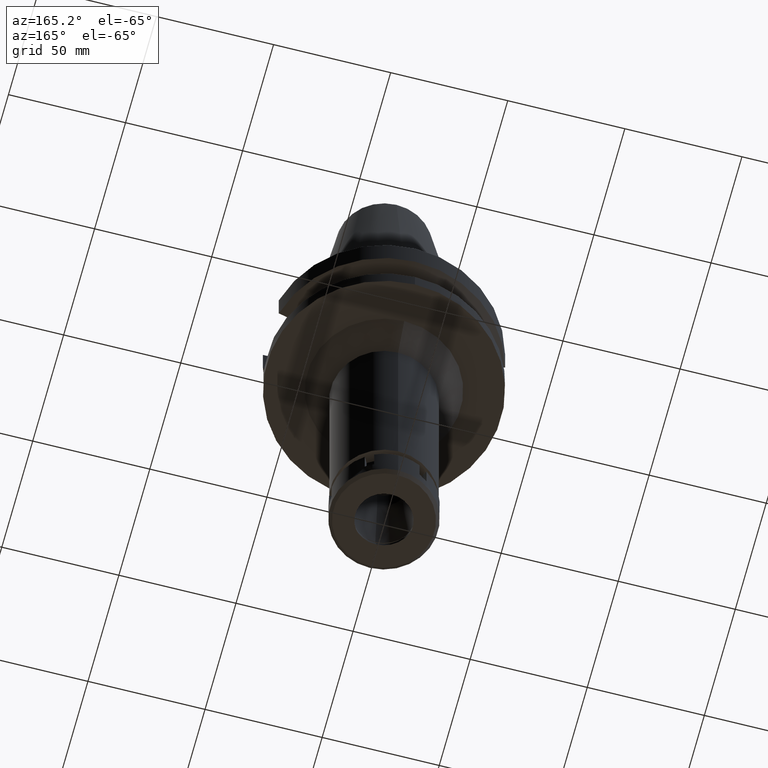
[diagram: clean part render]
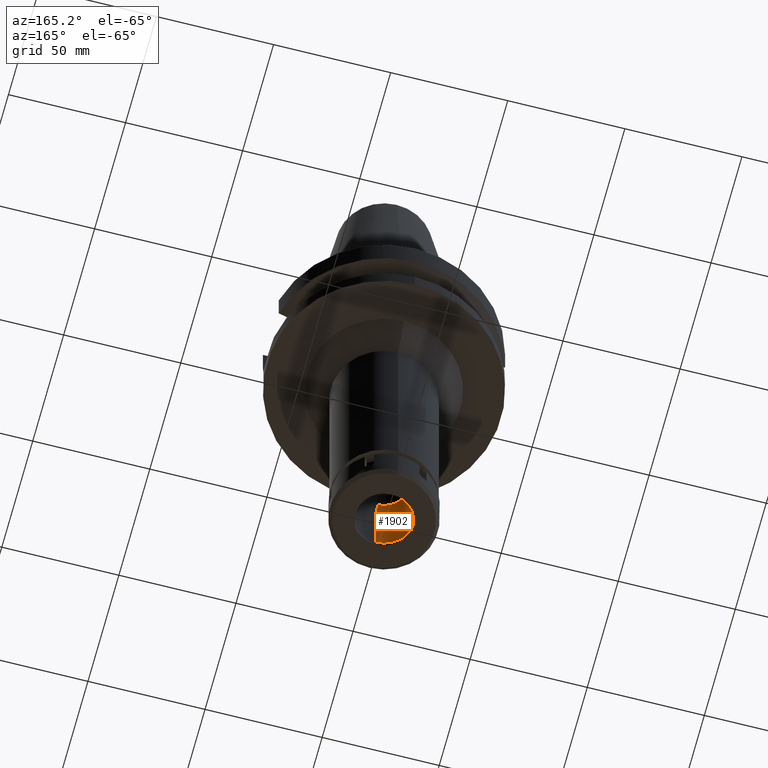
[diagram: same view with one face highlighted and labeled with its STEP entity id]
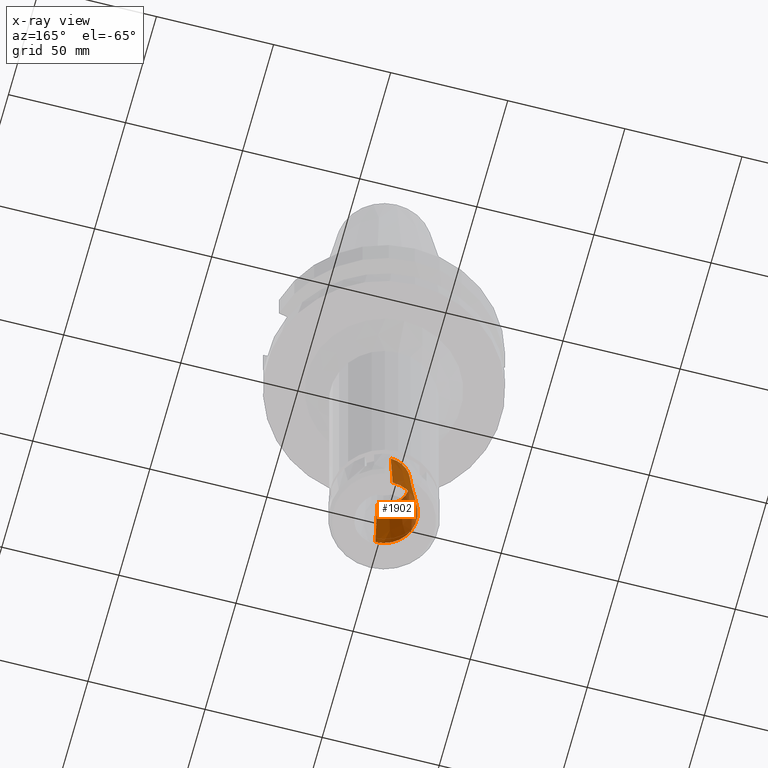
[diagram: x-ray of the same camera — body ghosted, the highlighted face saturated]
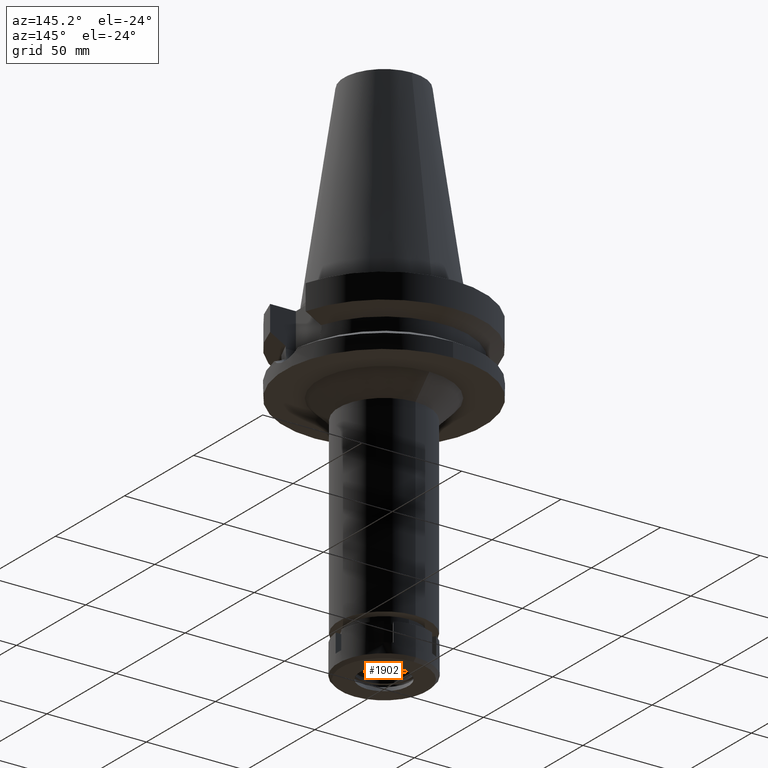
[diagram: same view with one face highlighted and labeled with its STEP entity id]
A machine part, auxiliary view. The second image highlights one B-rep face of the part: STEP entity #1902.
The next image is the same camera in x-ray: the body ghosted, the highlighted face saturated — about 2% of this face is hidden behind the body in this view.
A second angle (auxiliary view) of the same face is appended — the face is thin or edge-on in the first view.
In plain terms, the highlighted conical surface has half-angle 6 deg.
Its self-contained STEP definition (entity closure, byte-faithful):
#52 = DIRECTION ( 'NONE',  ( 0.0000000000000000000, 0.0000000000000000000, 1.000000000000000000 ) ) ;
#55 = CARTESIAN_POINT ( 'NONE',  ( 0.0000000000000000000, -10.84687294202000096, -127.0000000000000000 ) ) ;
#65 = DIRECTION ( 'NONE',  ( 0.0000000000000000000, -1.000000000000000000, 0.0000000000000000000 ) ) ;
#83 = FACE_OUTER_BOUND ( 'NONE', #2226, .T. ) ;
#188 = EDGE_CURVE ( 'NONE', #1487, #1557, #1239, .T. ) ;
#302 = DIRECTION ( 'NONE',  ( 0.0000000000000000000, 1.000000000000000000, 0.0000000000000000000 ) ) ;
#440 = DIRECTION ( 'NONE',  ( 0.0000000000000000000, -0.1045284632676965891, 0.9945218953682687379 ) ) ;
#639 = CARTESIAN_POINT ( 'NONE',  ( 0.0000000000000000000, 0.0000000000000000000, -157.0000000000000000 ) ) ;
#643 = DIRECTION ( 'NONE',  ( 0.0000000000000000000, 0.1045284632676965891, 0.9945218953682687379 ) ) ;
#750 = EDGE_CURVE ( 'NONE', #1475, #1557, #3679, .T. ) ;
#816 = AXIS2_PLACEMENT_3D ( 'NONE', #639, #1748, #2609 ) ;
#922 = CARTESIAN_POINT ( 'NONE',  ( 0.0000000000000000000, 0.0000000000000000000, -142.0000000000000000 ) ) ;
#1056 = AXIS2_PLACEMENT_3D ( 'NONE', #922, #3528, #65 ) ;
#1125 = CARTESIAN_POINT ( 'NONE',  ( 0.0000000000000000000, -14.00000000000000000, -157.0000000000000000 ) ) ;
#1170 = ORIENTED_EDGE ( 'NONE', *, *, #1176, .T. ) ;
#1176 = EDGE_CURVE ( 'NONE', #1487, #1324, #1943, .T. ) ;
#1239 = LINE ( 'NONE', #1497, #2368 ) ;
#1324 = VERTEX_POINT ( 'NONE', #1412 ) ;
#1412 = CARTESIAN_POINT ( 'NONE',  ( 0.0000000000000000000, 14.00000000000000000, -157.0000000000000000 ) ) ;
#1475 = VERTEX_POINT ( 'NONE', #2855 ) ;
#1477 = CARTESIAN_POINT ( 'NONE',  ( 0.0000000000000000000, 0.0000000000000000000, -127.0000000000000000 ) ) ;
#1487 = VERTEX_POINT ( 'NONE', #1125 ) ;
#1497 = CARTESIAN_POINT ( 'NONE',  ( 0.0000000000000000000, -14.00000000000000000, -157.0000000000000000 ) ) ;
#1557 = VERTEX_POINT ( 'NONE', #55 ) ;
#1738 = ORIENTED_EDGE ( 'NONE', *, *, #188, .F. ) ;
#1748 = DIRECTION ( 'NONE',  ( 0.0000000000000000000, 0.0000000000000000000, -1.000000000000000000 ) ) ;
#1757 = AXIS2_PLACEMENT_3D ( 'NONE', #1477, #52, #302 ) ;
#1902 = ADVANCED_FACE ( 'NONE', ( #83 ), #3208, .F. ) ;
#1943 = CIRCLE ( 'NONE', #816, 14.00000000000000000 ) ;
#2166 = LINE ( 'NONE', #3005, #3388 ) ;
#2175 = EDGE_CURVE ( 'NONE', #1324, #1475, #2166, .T. ) ;
#2226 = EDGE_LOOP ( 'NONE', ( #3541, #1738, #1170, #2805 ) ) ;
#2368 = VECTOR ( 'NONE', #643, 1000.000000000000227 ) ;
#2609 = DIRECTION ( 'NONE',  ( 0.0000000000000000000, -1.000000000000000000, 0.0000000000000000000 ) ) ;
#2805 = ORIENTED_EDGE ( 'NONE', *, *, #2175, .T. ) ;
#2855 = CARTESIAN_POINT ( 'NONE',  ( 0.0000000000000000000, 10.84687294202000096, -127.0000000000000000 ) ) ;
#3005 = CARTESIAN_POINT ( 'NONE',  ( 0.0000000000000000000, 14.00000000000000000, -157.0000000000000000 ) ) ;
#3208 = CONICAL_SURFACE ( 'NONE', #1056, 12.42343647100999959, 0.1047197551196402399 ) ;
#3388 = VECTOR ( 'NONE', #440, 1000.000000000000227 ) ;
#3528 = DIRECTION ( 'NONE',  ( 0.0000000000000000000, 0.0000000000000000000, -1.000000000000000000 ) ) ;
#3541 = ORIENTED_EDGE ( 'NONE', *, *, #750, .T. ) ;
#3679 = CIRCLE ( 'NONE', #1757, 10.84687294202000096 ) ;